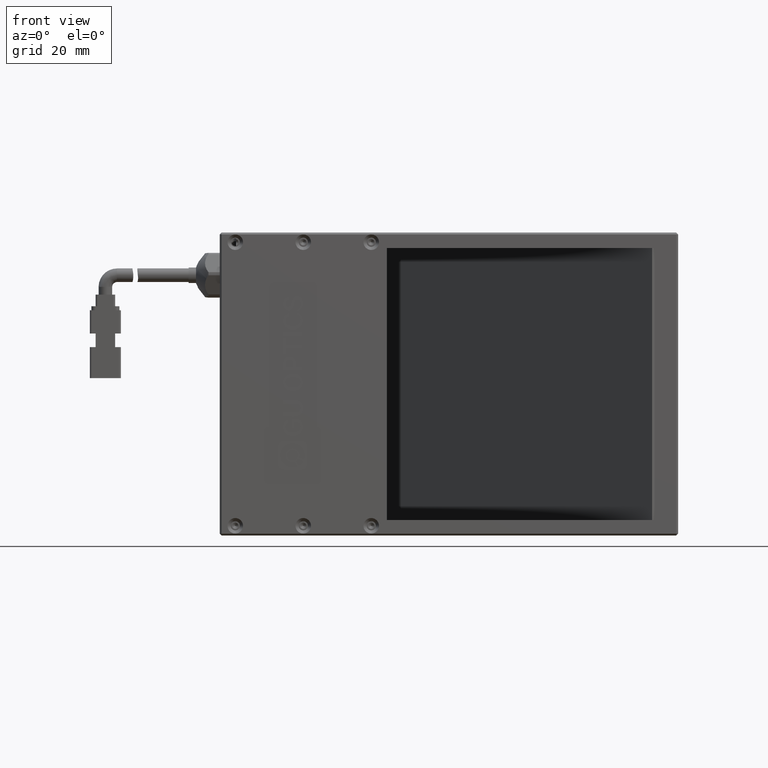
[diagram: clean part render]
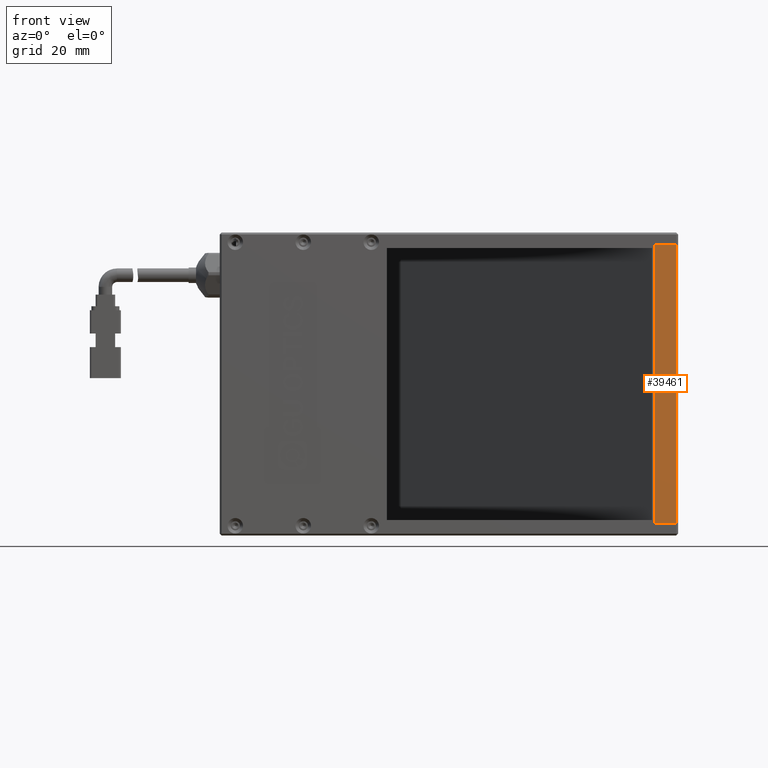
[diagram: same view with one face highlighted and labeled with its STEP entity id]
A machine part, front view. The second image highlights one B-rep face of the part: STEP entity #39461.
In plain terms, the highlighted planar face has unit normal (-0, 1, 0).
Its self-contained STEP definition (entity closure, byte-faithful):
#844 = VERTEX_POINT ( 'NONE', #17824 ) ;
#1305 = CARTESIAN_POINT ( 'NONE',  ( 44.53944640265395100, -17.41808924827789400, 75.00000000000955000 ) ) ;
#4194 = CARTESIAN_POINT ( 'NONE',  ( 44.53944640265395100, -17.41808924827789400, 75.00000000000955000 ) ) ;
#6427 = VERTEX_POINT ( 'NONE', #68599 ) ;
#7702 = EDGE_CURVE ( 'NONE', #6427, #70871, #24611, .T. ) ;
#8092 = EDGE_CURVE ( 'NONE', #844, #45655, #9818, .T. ) ;
#9391 = DIRECTION ( 'NONE',  ( 0.0000000000000000000, 0.0000000000000000000, 1.000000000000000000 ) ) ;
#9818 = LINE ( 'NONE', #57750, #68314 ) ;
#11389 = PLANE ( 'NONE',  #21912 ) ;
#11624 = DIRECTION ( 'NONE',  ( -0.0000000000000000000, 1.000000000000000000, 0.0000000000000000000 ) ) ;
#17824 = CARTESIAN_POINT ( 'NONE',  ( 39.03944640265395100, -17.41808924827789400, 75.00000000000955000 ) ) ;
#19204 = DIRECTION ( 'NONE',  ( 1.000000000000000000, 0.0000000000000000000, 0.0000000000000000000 ) ) ;
#20489 = ORIENTED_EDGE ( 'NONE', *, *, #8092, .F. ) ;
#21912 = AXIS2_PLACEMENT_3D ( 'NONE', #44527, #11624, #50078 ) ;
#22907 = VECTOR ( 'NONE', #27610, 1000.000000000000000 ) ;
#22918 = FACE_OUTER_BOUND ( 'NONE', #46471, .T. ) ;
#23493 = EDGE_CURVE ( 'NONE', #45655, #6427, #69208, .T. ) ;
#24611 = LINE ( 'NONE', #43906, #22907 ) ;
#27610 = DIRECTION ( 'NONE',  ( -1.000000000000000000, -0.0000000000000000000, -0.0000000000000000000 ) ) ;
#28817 = VECTOR ( 'NONE', #31615, 1000.000000000000000 ) ;
#31615 = DIRECTION ( 'NONE',  ( 0.0000000000000000000, 0.0000000000000000000, -1.000000000000000000 ) ) ;
#31765 = ORIENTED_EDGE ( 'NONE', *, *, #23493, .F. ) ;
#32992 = ORIENTED_EDGE ( 'NONE', *, *, #51019, .F. ) ;
#39461 = ADVANCED_FACE ( 'NONE', ( #22918 ), #11389, .F. ) ;
#41081 = CARTESIAN_POINT ( 'NONE',  ( 39.03944640265395100, -17.41808924827789400, 3.000000000009536800 ) ) ;
#43906 = CARTESIAN_POINT ( 'NONE',  ( 45.03944640265395100, -17.41808924827789400, 3.000000000009536800 ) ) ;
#44527 = CARTESIAN_POINT ( 'NONE',  ( 45.03944640265395100, -17.41808924827789400, 75.00000000000955000 ) ) ;
#45655 = VERTEX_POINT ( 'NONE', #1305 ) ;
#46471 = EDGE_LOOP ( 'NONE', ( #31765, #20489, #32992, #68031 ) ) ;
#50078 = DIRECTION ( 'NONE',  ( 1.000000000000000000, 0.0000000000000000000, 0.0000000000000000000 ) ) ;
#51019 = EDGE_CURVE ( 'NONE', #70871, #844, #56269, .T. ) ;
#54505 = VECTOR ( 'NONE', #9391, 1000.000000000000000 ) ;
#56269 = LINE ( 'NONE', #58497, #54505 ) ;
#57750 = CARTESIAN_POINT ( 'NONE',  ( 45.03944640265395100, -17.41808924827789400, 75.00000000000955000 ) ) ;
#58497 = CARTESIAN_POINT ( 'NONE',  ( 39.03944640265395100, -17.41808924827789400, 75.00000000000955000 ) ) ;
#68031 = ORIENTED_EDGE ( 'NONE', *, *, #7702, .F. ) ;
#68314 = VECTOR ( 'NONE', #19204, 1000.000000000000000 ) ;
#68599 = CARTESIAN_POINT ( 'NONE',  ( 44.53944640265395100, -17.41808924827789400, 3.000000000009508800 ) ) ;
#69208 = LINE ( 'NONE', #4194, #28817 ) ;
#70871 = VERTEX_POINT ( 'NONE', #41081 ) ;